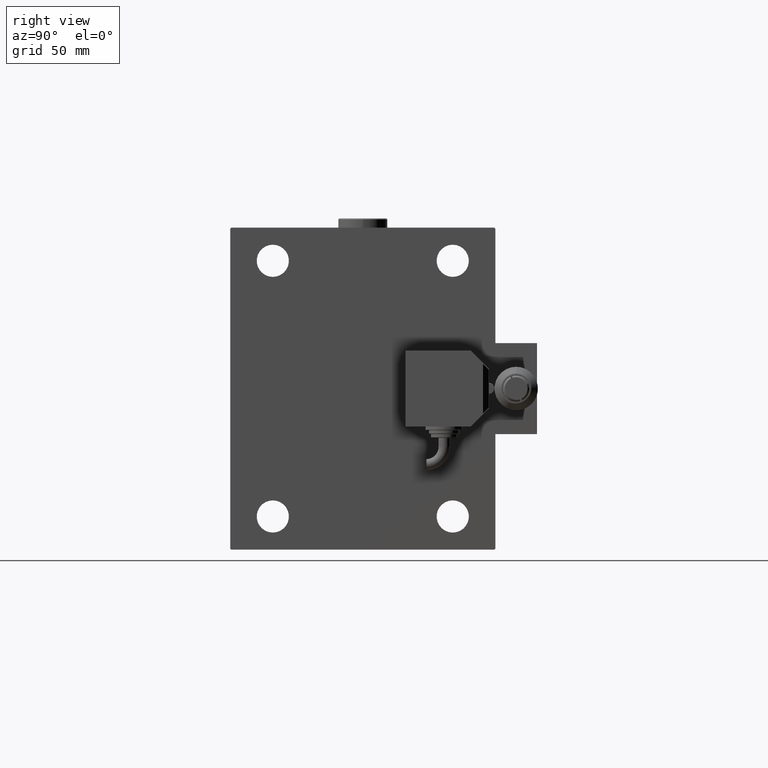
[diagram: clean part render]
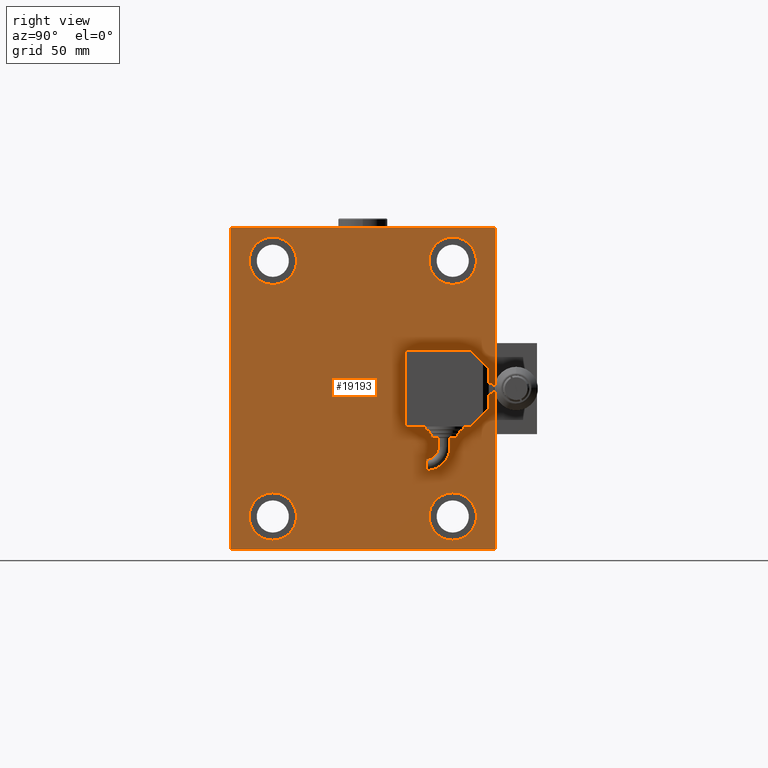
[diagram: same view with one face highlighted and labeled with its STEP entity id]
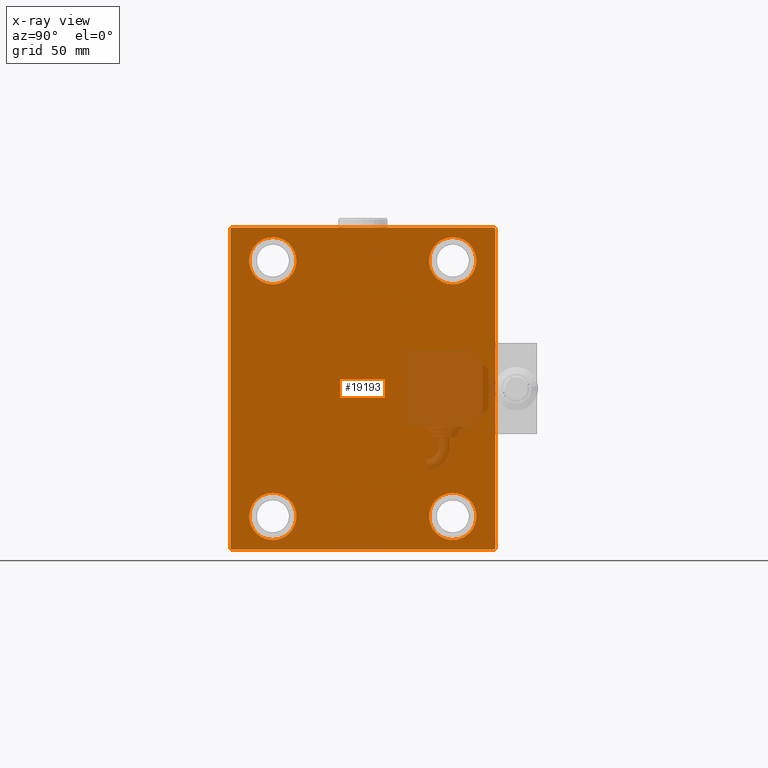
[diagram: x-ray of the same camera — body ghosted, the highlighted face saturated]
A machine part, right view. The second image highlights one B-rep face of the part: STEP entity #19193.
The next image is the same camera in x-ray: the body ghosted, the highlighted face saturated — about 9% of this face is hidden behind the body in this view.
In plain terms, the highlighted planar face has unit normal (1, 0, 0).
Its self-contained STEP definition (entity closure, byte-faithful):
#403 = CARTESIAN_POINT ( 'NONE',  ( 155.0000000000000000, -69.50000000000001421, -85.00000000000002842 ) ) ;
#966 = ORIENTED_EDGE ( 'NONE', *, *, #36875, .T. ) ;
#1236 = EDGE_CURVE ( 'NONE', #1811, #21367, #43267, .T. ) ;
#1354 = CARTESIAN_POINT ( 'NONE',  ( 155.0000000000000000, 70.00000000000001421, 85.00000000000000000 ) ) ;
#1457 = CARTESIAN_POINT ( 'NONE',  ( 155.0000000000000000, -47.49999999999999289, -67.50000000000000000 ) ) ;
#1811 = VERTEX_POINT ( 'NONE', #9271 ) ;
#2688 = VERTEX_POINT ( 'NONE', #18007 ) ;
#3196 = CIRCLE ( 'NONE', #44802, 12.50000000000001066 ) ;
#3873 = AXIS2_PLACEMENT_3D ( 'NONE', #1457, #22007, #37380 ) ;
#4317 = LINE ( 'NONE', #39192, #44285 ) ;
#4460 = CARTESIAN_POINT ( 'NONE',  ( 155.0000000000000000, 77.24999999999907629, -77.25000000000123634 ) ) ;
#5099 = DIRECTION ( 'NONE',  ( 0.000000000000000000, 0.000000000000000000, -1.000000000000000000 ) ) ;
#5923 = VECTOR ( 'NONE', #36479, 1000.000000000000000 ) ;
#6123 = EDGE_LOOP ( 'NONE', ( #49164, #46948 ) ) ;
#6203 = VERTEX_POINT ( 'NONE', #10761 ) ;
#6281 = LINE ( 'NONE', #21136, #39170 ) ;
#6442 = DIRECTION ( 'NONE',  ( 0.000000000000000000, 0.000000000000000000, 1.000000000000000000 ) ) ;
#6742 = LINE ( 'NONE', #37980, #46877 ) ;
#7587 = VECTOR ( 'NONE', #49765, 1000.000000000000000 ) ;
#7775 = AXIS2_PLACEMENT_3D ( 'NONE', #45195, #17587, #5099 ) ;
#8630 = DIRECTION ( 'NONE',  ( -0.000000000000000000, 0.7071067811865573427, 0.7071067811865376918 ) ) ;
#8894 = CARTESIAN_POINT ( 'NONE',  ( 155.0000000000000000, -69.99999999999998579, -85.00000000000002842 ) ) ;
#9271 = CARTESIAN_POINT ( 'NONE',  ( 155.0000000000000000, 69.50000000000007105, -85.00000000000001421 ) ) ;
#9522 = EDGE_CURVE ( 'NONE', #46490, #16703, #29947, .T. ) ;
#9524 = CIRCLE ( 'NONE', #15339, 12.50000000000001066 ) ;
#9677 = DIRECTION ( 'NONE',  ( 0.000000000000000000, -0.7071067811865672237, -0.7071067811865279218 ) ) ;
#10400 = CIRCLE ( 'NONE', #49478, 12.50000000000001066 ) ;
#10603 = EDGE_CURVE ( 'NONE', #47469, #1811, #12794, .T. ) ;
#10761 = CARTESIAN_POINT ( 'NONE',  ( 155.0000000000000000, -69.49999999999997158, 84.99999999999998579 ) ) ;
#10804 = CARTESIAN_POINT ( 'NONE',  ( 155.0000000000000000, 47.50000000000000711, -67.50000000000000000 ) ) ;
#10897 = DIRECTION ( 'NONE',  ( -0.000000000000000000, 0.7071067811865376918, -0.7071067811865573427 ) ) ;
#11327 = DIRECTION ( 'NONE',  ( 0.000000000000000000, 0.000000000000000000, 1.000000000000000000 ) ) ;
#11537 = VERTEX_POINT ( 'NONE', #42016 ) ;
#12249 = VERTEX_POINT ( 'NONE', #15304 ) ;
#12794 = LINE ( 'NONE', #8894, #5923 ) ;
#13301 = DIRECTION ( 'NONE',  ( 0.000000000000000000, 0.000000000000000000, 1.000000000000000000 ) ) ;
#15304 = CARTESIAN_POINT ( 'NONE',  ( 155.0000000000000000, 47.50000000000000711, -80.00000000000000000 ) ) ;
#15339 = AXIS2_PLACEMENT_3D ( 'NONE', #31631, #19396, #11327 ) ;
#16703 = VERTEX_POINT ( 'NONE', #25281 ) ;
#17027 = AXIS2_PLACEMENT_3D ( 'NONE', #22319, #49684, #6442 ) ;
#17587 = DIRECTION ( 'NONE',  ( 1.000000000000000000, 0.000000000000000000, 0.000000000000000000 ) ) ;
#17678 = EDGE_CURVE ( 'NONE', #49949, #47469, #6742, .T. ) ;
#17843 = ORIENTED_EDGE ( 'NONE', *, *, #1236, .T. ) ;
#18001 = LINE ( 'NONE', #1354, #7587 ) ;
#18007 = CARTESIAN_POINT ( 'NONE',  ( 155.0000000000000000, 70.00000000000001421, 84.50000000000001421 ) ) ;
#18691 = CIRCLE ( 'NONE', #17027, 12.50000000000001066 ) ;
#18756 = CARTESIAN_POINT ( 'NONE',  ( 155.0000000000000000, 70.00000000000002842, -84.50000000000007105 ) ) ;
#19193 = ADVANCED_FACE ( 'NONE', ( #40761, #28769, #44940, #32436, #20703 ), #48330, .T. ) ;
#19396 = DIRECTION ( 'NONE',  ( -1.000000000000000000, -0.000000000000000000, -0.000000000000000000 ) ) ;
#19662 = DIRECTION ( 'NONE',  ( 0.000000000000000000, -8.163404592832031500E-17, 1.000000000000000000 ) ) ;
#20310 = VERTEX_POINT ( 'NONE', #50064 ) ;
#20703 = FACE_OUTER_BOUND ( 'NONE', #38709, .T. ) ;
#21136 = CARTESIAN_POINT ( 'NONE',  ( 155.0000000000000000, -77.24999999999803890, 77.25000000000234479 ) ) ;
#21367 = VERTEX_POINT ( 'NONE', #18756 ) ;
#22007 = DIRECTION ( 'NONE',  ( -1.000000000000000000, -0.000000000000000000, -0.000000000000000000 ) ) ;
#22036 = EDGE_CURVE ( 'NONE', #23058, #37672, #9524, .T. ) ;
#22319 = CARTESIAN_POINT ( 'NONE',  ( 155.0000000000000000, -47.49999999999997868, 67.50000000000000000 ) ) ;
#22336 = VECTOR ( 'NONE', #8630, 1000.000000000000114 ) ;
#22425 = EDGE_CURVE ( 'NONE', #2688, #31752, #29603, .T. ) ;
#23058 = VERTEX_POINT ( 'NONE', #39551 ) ;
#23998 = VECTOR ( 'NONE', #37241, 1000.000000000000000 ) ;
#24093 = ORIENTED_EDGE ( 'NONE', *, *, #40791, .T. ) ;
#24742 = DIRECTION ( 'NONE',  ( -1.000000000000000000, -0.000000000000000000, -0.000000000000000000 ) ) ;
#25281 = CARTESIAN_POINT ( 'NONE',  ( 155.0000000000000000, -47.49999999999999289, -80.00000000000000000 ) ) ;
#25444 = DIRECTION ( 'NONE',  ( -0.000000000000000000, -0.7071067811865376918, 0.7071067811865573427 ) ) ;
#25741 = DIRECTION ( 'NONE',  ( 0.000000000000000000, 0.000000000000000000, 1.000000000000000000 ) ) ;
#26101 = VERTEX_POINT ( 'NONE', #39388 ) ;
#26931 = AXIS2_PLACEMENT_3D ( 'NONE', #10804, #30846, #26938 ) ;
#26938 = DIRECTION ( 'NONE',  ( 0.000000000000000000, 0.000000000000000000, 1.000000000000000000 ) ) ;
#26953 = CARTESIAN_POINT ( 'NONE',  ( 155.0000000000000000, -47.49999999999999289, -55.00000000000000711 ) ) ;
#27066 = CARTESIAN_POINT ( 'NONE',  ( 155.0000000000000000, -47.49999999999997868, 67.50000000000000000 ) ) ;
#27317 = EDGE_CURVE ( 'NONE', #37672, #23058, #3196, .T. ) ;
#27561 = ORIENTED_EDGE ( 'NONE', *, *, #17678, .T. ) ;
#27972 = CARTESIAN_POINT ( 'NONE',  ( 155.0000000000000000, -47.49999999999997868, 55.00000000000000000 ) ) ;
#28087 = DIRECTION ( 'NONE',  ( -1.000000000000000000, -0.000000000000000000, -0.000000000000000000 ) ) ;
#28144 = EDGE_CURVE ( 'NONE', #20310, #49949, #44566, .T. ) ;
#28769 = FACE_BOUND ( 'NONE', #36997, .T. ) ;
#29177 = CARTESIAN_POINT ( 'NONE',  ( 155.0000000000000000, -47.49999999999999289, -67.50000000000000000 ) ) ;
#29603 = LINE ( 'NONE', #46271, #38652 ) ;
#29947 = CIRCLE ( 'NONE', #36614, 12.49999999999999645 ) ;
#30846 = DIRECTION ( 'NONE',  ( -1.000000000000000000, -0.000000000000000000, -0.000000000000000000 ) ) ;
#31305 = CARTESIAN_POINT ( 'NONE',  ( 155.0000000000000000, -69.99999999999998579, -84.50000000000004263 ) ) ;
#31631 = CARTESIAN_POINT ( 'NONE',  ( 155.0000000000000000, 47.50000000000000711, 67.50000000000000000 ) ) ;
#31752 = VERTEX_POINT ( 'NONE', #45812 ) ;
#32436 = FACE_BOUND ( 'NONE', #50808, .T. ) ;
#36479 = DIRECTION ( 'NONE',  ( 0.000000000000000000, 1.000000000000000000, 9.912705577010325549E-17 ) ) ;
#36614 = AXIS2_PLACEMENT_3D ( 'NONE', #29177, #24742, #13301 ) ;
#36875 = EDGE_CURVE ( 'NONE', #6203, #20310, #6281, .T. ) ;
#36908 = EDGE_CURVE ( 'NONE', #31752, #6203, #18001, .T. ) ;
#36940 = AXIS2_PLACEMENT_3D ( 'NONE', #38556, #49526, #46118 ) ;
#36997 = EDGE_LOOP ( 'NONE', ( #43374, #49457 ) ) ;
#37241 = DIRECTION ( 'NONE',  ( 0.000000000000000000, 0.000000000000000000, -1.000000000000000000 ) ) ;
#37380 = DIRECTION ( 'NONE',  ( 0.000000000000000000, 0.000000000000000000, 1.000000000000000000 ) ) ;
#37672 = VERTEX_POINT ( 'NONE', #45119 ) ;
#37980 = CARTESIAN_POINT ( 'NONE',  ( 155.0000000000000000, -77.25000000000099476, -77.24999999999884892 ) ) ;
#37989 = ORIENTED_EDGE ( 'NONE', *, *, #22425, .T. ) ;
#38115 = ORIENTED_EDGE ( 'NONE', *, *, #10603, .T. ) ;
#38556 = CARTESIAN_POINT ( 'NONE',  ( 155.0000000000000000, 47.50000000000000711, -67.50000000000000000 ) ) ;
#38652 = VECTOR ( 'NONE', #25444, 1000.000000000000114 ) ;
#38709 = EDGE_LOOP ( 'NONE', ( #47806, #966, #51196, #27561, #38115, #17843, #24093, #37989 ) ) ;
#39032 = ORIENTED_EDGE ( 'NONE', *, *, #27317, .T. ) ;
#39170 = VECTOR ( 'NONE', #9677, 1000.000000000000000 ) ;
#39192 = CARTESIAN_POINT ( 'NONE',  ( 155.0000000000000000, 70.00000000000002842, -85.00000000000001421 ) ) ;
#39388 = CARTESIAN_POINT ( 'NONE',  ( 155.0000000000000000, -47.49999999999997868, 80.00000000000001421 ) ) ;
#39551 = CARTESIAN_POINT ( 'NONE',  ( 155.0000000000000000, 47.50000000000000711, 80.00000000000001421 ) ) ;
#40093 = EDGE_LOOP ( 'NONE', ( #39032, #40561 ) ) ;
#40561 = ORIENTED_EDGE ( 'NONE', *, *, #22036, .T. ) ;
#40761 = FACE_BOUND ( 'NONE', #6123, .T. ) ;
#40791 = EDGE_CURVE ( 'NONE', #21367, #2688, #4317, .T. ) ;
#40881 = DIRECTION ( 'NONE',  ( -1.000000000000000000, -0.000000000000000000, -0.000000000000000000 ) ) ;
#40902 = CARTESIAN_POINT ( 'NONE',  ( 155.0000000000000000, -69.99999999999998579, 84.99999999999998579 ) ) ;
#41388 = ORIENTED_EDGE ( 'NONE', *, *, #9522, .T. ) ;
#42016 = CARTESIAN_POINT ( 'NONE',  ( 155.0000000000000000, 47.50000000000000711, -55.00000000000000711 ) ) ;
#43267 = LINE ( 'NONE', #4460, #22336 ) ;
#43374 = ORIENTED_EDGE ( 'NONE', *, *, #49555, .T. ) ;
#44285 = VECTOR ( 'NONE', #19662, 1000.000000000000000 ) ;
#44566 = LINE ( 'NONE', #40902, #23998 ) ;
#44629 = EDGE_CURVE ( 'NONE', #11537, #12249, #47767, .T. ) ;
#44802 = AXIS2_PLACEMENT_3D ( 'NONE', #48951, #40881, #25741 ) ;
#44940 = FACE_BOUND ( 'NONE', #40093, .T. ) ;
#45119 = CARTESIAN_POINT ( 'NONE',  ( 155.0000000000000000, 47.50000000000000711, 55.00000000000000000 ) ) ;
#45195 = CARTESIAN_POINT ( 'NONE',  ( 155.0000000000000000, 0.000000000000000000, 0.000000000000000000 ) ) ;
#45812 = CARTESIAN_POINT ( 'NONE',  ( 155.0000000000000000, 69.50000000000004263, 85.00000000000000000 ) ) ;
#46118 = DIRECTION ( 'NONE',  ( 0.000000000000000000, 0.000000000000000000, 1.000000000000000000 ) ) ;
#46271 = CARTESIAN_POINT ( 'NONE',  ( 155.0000000000000000, 77.25000000000099476, 77.24999999999884892 ) ) ;
#46283 = CIRCLE ( 'NONE', #3873, 12.49999999999999645 ) ;
#46490 = VERTEX_POINT ( 'NONE', #26953 ) ;
#46877 = VECTOR ( 'NONE', #10897, 1000.000000000000114 ) ;
#46948 = ORIENTED_EDGE ( 'NONE', *, *, #44629, .T. ) ;
#47469 = VERTEX_POINT ( 'NONE', #403 ) ;
#47646 = DIRECTION ( 'NONE',  ( 0.000000000000000000, 0.000000000000000000, 1.000000000000000000 ) ) ;
#47767 = CIRCLE ( 'NONE', #36940, 12.49999999999999645 ) ;
#47806 = ORIENTED_EDGE ( 'NONE', *, *, #36908, .T. ) ;
#47852 = EDGE_CURVE ( 'NONE', #12249, #11537, #50255, .T. ) ;
#48316 = EDGE_CURVE ( 'NONE', #26101, #49750, #18691, .T. ) ;
#48330 = PLANE ( 'NONE',  #7775 ) ;
#48951 = CARTESIAN_POINT ( 'NONE',  ( 155.0000000000000000, 47.50000000000000711, 67.50000000000000000 ) ) ;
#49164 = ORIENTED_EDGE ( 'NONE', *, *, #47852, .T. ) ;
#49353 = ORIENTED_EDGE ( 'NONE', *, *, #50576, .T. ) ;
#49457 = ORIENTED_EDGE ( 'NONE', *, *, #48316, .T. ) ;
#49478 = AXIS2_PLACEMENT_3D ( 'NONE', #27066, #28087, #47646 ) ;
#49526 = DIRECTION ( 'NONE',  ( -1.000000000000000000, -0.000000000000000000, -0.000000000000000000 ) ) ;
#49555 = EDGE_CURVE ( 'NONE', #49750, #26101, #10400, .T. ) ;
#49684 = DIRECTION ( 'NONE',  ( -1.000000000000000000, -0.000000000000000000, -0.000000000000000000 ) ) ;
#49750 = VERTEX_POINT ( 'NONE', #27972 ) ;
#49765 = DIRECTION ( 'NONE',  ( 0.000000000000000000, -1.000000000000000000, -9.912705577010325549E-17 ) ) ;
#49949 = VERTEX_POINT ( 'NONE', #31305 ) ;
#50064 = CARTESIAN_POINT ( 'NONE',  ( 155.0000000000000000, -69.99999999999998579, 84.49999999999998579 ) ) ;
#50255 = CIRCLE ( 'NONE', #26931, 12.49999999999999645 ) ;
#50576 = EDGE_CURVE ( 'NONE', #16703, #46490, #46283, .T. ) ;
#50808 = EDGE_LOOP ( 'NONE', ( #49353, #41388 ) ) ;
#51196 = ORIENTED_EDGE ( 'NONE', *, *, #28144, .T. ) ;